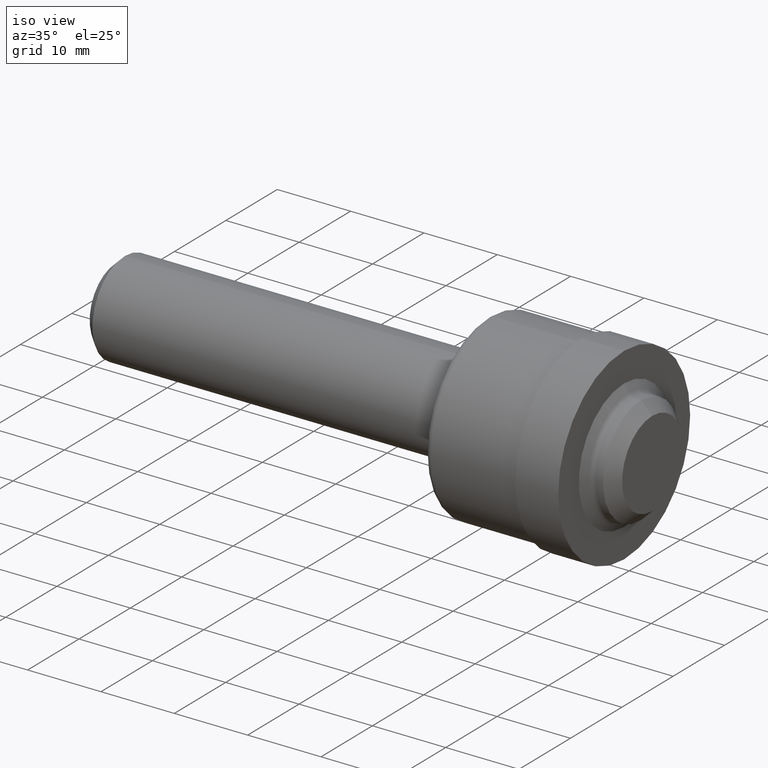
[diagram: clean part render]
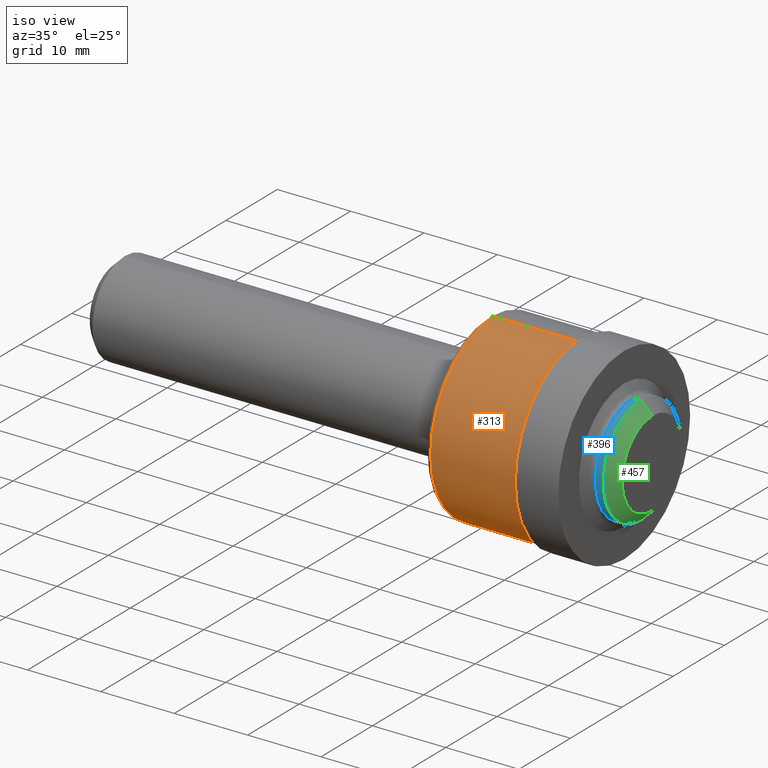
[diagram: same view with three faces highlighted in distinct colors, each labeled with its STEP entity id]
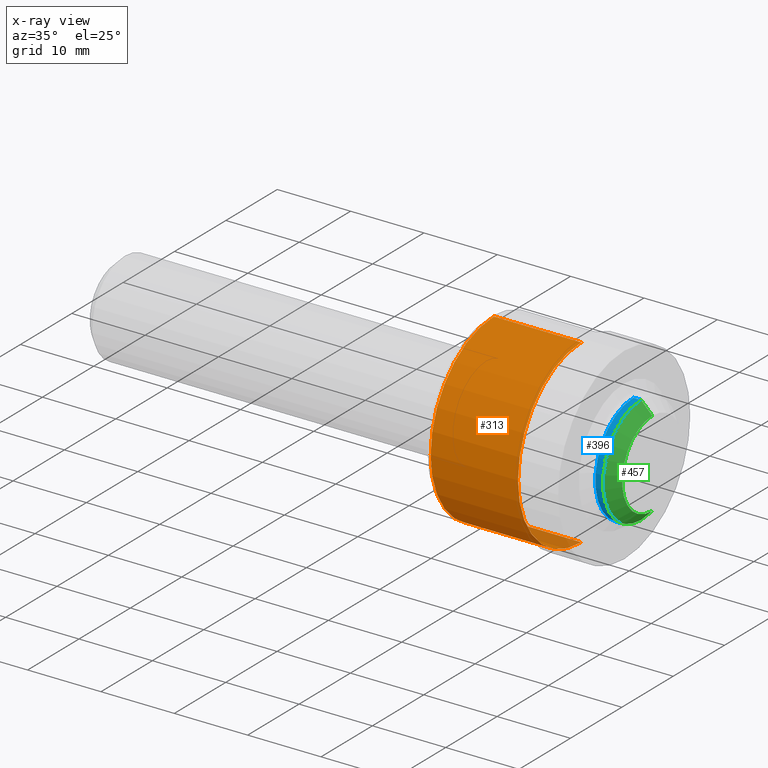
[diagram: x-ray of the same camera — body ghosted, the three highlighted faces saturated]
A machine part, iso view with three faces highlighted in distinct colors.
The next image is the same camera in x-ray (body ghosted, the three faces saturated) — at least one of them is partly hidden behind the body in this view.
Their STEP definitions:

[orange] entity #313 — the highlighted cylindrical surface (partial cylindrical patch) has radius 12.319 mm, axis along (-1, -0, -0).
#20 = AXIS2_PLACEMENT_3D ( 'NONE', #542, #640, #153 ) ;
#80 = ORIENTED_EDGE ( 'NONE', *, *, #309, .T. ) ;
#85 = FACE_OUTER_BOUND ( 'NONE', #172, .T. ) ;
#112 = CARTESIAN_POINT ( 'NONE',  ( 0.000000000000000000, 5.939536975864663462E-17, -0.4850000000000000422 ) ) ;
#153 = DIRECTION ( 'NONE',  ( 0.000000000000000000, 0.000000000000000000, 1.000000000000000000 ) ) ;
#172 = EDGE_LOOP ( 'NONE', ( #361, #512, #80, #349 ) ) ;
#203 = EDGE_CURVE ( 'NONE', #509, #563, #372, .T. ) ;
#230 = VECTOR ( 'NONE', #487, 39.37007874015748143 ) ;
#309 = EDGE_CURVE ( 'NONE', #563, #311, #360, .T. ) ;
#311 = VERTEX_POINT ( 'NONE', #630 ) ;
#313 = ADVANCED_FACE ( 'NONE', ( #85 ), #350, .T. ) ;
#316 = AXIS2_PLACEMENT_3D ( 'NONE', #387, #393, #602 ) ;
#349 = ORIENTED_EDGE ( 'NONE', *, *, #475, .F. ) ;
#350 = CYLINDRICAL_SURFACE ( 'NONE', #425, 0.4850000000000000422 ) ;
#355 = DIRECTION ( 'NONE',  ( 0.000000000000000000, 0.000000000000000000, 1.000000000000000000 ) ) ;
#360 = LINE ( 'NONE', #621, #468 ) ;
#361 = ORIENTED_EDGE ( 'NONE', *, *, #490, .F. ) ;
#372 = CIRCLE ( 'NONE', #316, 0.4850000000000000422 ) ;
#387 = CARTESIAN_POINT ( 'NONE',  ( 2.498999999999999666, 0.000000000000000000, 0.000000000000000000 ) ) ;
#393 = DIRECTION ( 'NONE',  ( -1.000000000000000000, -0.000000000000000000, -0.000000000000000000 ) ) ;
#425 = AXIS2_PLACEMENT_3D ( 'NONE', #666, #471, #355 ) ;
#438 = CARTESIAN_POINT ( 'NONE',  ( 2.029999999999999805, 5.939536975864663462E-17, -0.4850000000000000422 ) ) ;
#462 = DIRECTION ( 'NONE',  ( -1.000000000000000000, -0.000000000000000000, -0.000000000000000000 ) ) ;
#468 = VECTOR ( 'NONE', #462, 39.37007874015748143 ) ;
#471 = DIRECTION ( 'NONE',  ( -1.000000000000000000, -0.000000000000000000, -0.000000000000000000 ) ) ;
#475 = EDGE_CURVE ( 'NONE', #592, #311, #690, .T. ) ;
#487 = DIRECTION ( 'NONE',  ( -1.000000000000000000, -0.000000000000000000, -0.000000000000000000 ) ) ;
#490 = EDGE_CURVE ( 'NONE', #509, #592, #535, .T. ) ;
#491 = CARTESIAN_POINT ( 'NONE',  ( 2.498999999999999666, 0.000000000000000000, 0.4850000000000000422 ) ) ;
#509 = VERTEX_POINT ( 'NONE', #588 ) ;
#512 = ORIENTED_EDGE ( 'NONE', *, *, #203, .T. ) ;
#535 = LINE ( 'NONE', #112, #230 ) ;
#542 = CARTESIAN_POINT ( 'NONE',  ( 2.029999999999999805, 0.000000000000000000, 0.000000000000000000 ) ) ;
#563 = VERTEX_POINT ( 'NONE', #491 ) ;
#588 = CARTESIAN_POINT ( 'NONE',  ( 2.498999999999999666, 5.939536975864663462E-17, -0.4850000000000000422 ) ) ;
#592 = VERTEX_POINT ( 'NONE', #438 ) ;
#602 = DIRECTION ( 'NONE',  ( 0.000000000000000000, 0.000000000000000000, 1.000000000000000000 ) ) ;
#621 = CARTESIAN_POINT ( 'NONE',  ( 0.000000000000000000, 0.000000000000000000, 0.4850000000000000422 ) ) ;
#630 = CARTESIAN_POINT ( 'NONE',  ( 2.029999999999999805, 0.000000000000000000, 0.4850000000000000422 ) ) ;
#640 = DIRECTION ( 'NONE',  ( -1.000000000000000000, -0.000000000000000000, -0.000000000000000000 ) ) ;
#666 = CARTESIAN_POINT ( 'NONE',  ( 0.000000000000000000, 0.000000000000000000, 0.000000000000000000 ) ) ;
#690 = CIRCLE ( 'NONE', #20, 0.4850000000000000422 ) ;

[blue] entity #396 — the highlighted cylindrical surface (partial cylindrical patch) has radius 7.3939 mm, axis along (-1, -0, -0).
#11 = CARTESIAN_POINT ( 'NONE',  ( 2.778594388123388104, 3.564946832317952946E-17, -0.2911000000000006360 ) ) ;
#17 = ORIENTED_EDGE ( 'NONE', *, *, #224, .F. ) ;
#22 = VERTEX_POINT ( 'NONE', #11 ) ;
#27 = CARTESIAN_POINT ( 'NONE',  ( 2.819999999999999840, 0.000000000000000000, 0.000000000000000000 ) ) ;
#116 = DIRECTION ( 'NONE',  ( 0.000000000000000000, 0.000000000000000000, 1.000000000000000000 ) ) ;
#123 = LINE ( 'NONE', #614, #504 ) ;
#126 = LINE ( 'NONE', #331, #356 ) ;
#130 = CIRCLE ( 'NONE', #626, 0.2911000000000000254 ) ;
#141 = DIRECTION ( 'NONE',  ( 0.000000000000000000, 0.000000000000000000, 1.000000000000000000 ) ) ;
#158 = VERTEX_POINT ( 'NONE', #439 ) ;
#162 = AXIS2_PLACEMENT_3D ( 'NONE', #301, #669, #518 ) ;
#171 = CARTESIAN_POINT ( 'NONE',  ( 2.778594388123388104, 0.000000000000000000, 0.000000000000000000 ) ) ;
#189 = VERTEX_POINT ( 'NONE', #345 ) ;
#197 = VERTEX_POINT ( 'NONE', #516 ) ;
#224 = EDGE_CURVE ( 'NONE', #22, #158, #672, .T. ) ;
#298 = CYLINDRICAL_SURFACE ( 'NONE', #162, 0.2911000000000003585 ) ;
#301 = CARTESIAN_POINT ( 'NONE',  ( 0.000000000000000000, 0.000000000000000000, 0.000000000000000000 ) ) ;
#331 = CARTESIAN_POINT ( 'NONE',  ( 0.000000000000000000, 0.000000000000000000, 0.2911000000000003585 ) ) ;
#345 = CARTESIAN_POINT ( 'NONE',  ( 2.819999999999999840, 3.564946832317945551E-17, -0.2911000000000000254 ) ) ;
#356 = VECTOR ( 'NONE', #386, 39.37007874015748143 ) ;
#366 = FACE_OUTER_BOUND ( 'NONE', #519, .T. ) ;
#386 = DIRECTION ( 'NONE',  ( -1.000000000000000000, -0.000000000000000000, -0.000000000000000000 ) ) ;
#396 = ADVANCED_FACE ( 'NONE', ( #366 ), #298, .T. ) ;
#415 = EDGE_CURVE ( 'NONE', #189, #197, #130, .T. ) ;
#439 = CARTESIAN_POINT ( 'NONE',  ( 2.778594388123388104, 0.000000000000000000, 0.2911000000000006360 ) ) ;
#504 = VECTOR ( 'NONE', #505, 39.37007874015748143 ) ;
#505 = DIRECTION ( 'NONE',  ( -1.000000000000000000, -0.000000000000000000, -0.000000000000000000 ) ) ;
#514 = AXIS2_PLACEMENT_3D ( 'NONE', #171, #553, #116 ) ;
#516 = CARTESIAN_POINT ( 'NONE',  ( 2.819999999999999840, 0.000000000000000000, 0.2911000000000000254 ) ) ;
#518 = DIRECTION ( 'NONE',  ( 0.000000000000000000, 0.000000000000000000, 1.000000000000000000 ) ) ;
#519 = EDGE_LOOP ( 'NONE', ( #603, #631, #686, #17 ) ) ;
#523 = DIRECTION ( 'NONE',  ( -1.000000000000000000, -0.000000000000000000, -0.000000000000000000 ) ) ;
#553 = DIRECTION ( 'NONE',  ( -1.000000000000000000, -0.000000000000000000, -0.000000000000000000 ) ) ;
#603 = ORIENTED_EDGE ( 'NONE', *, *, #604, .F. ) ;
#604 = EDGE_CURVE ( 'NONE', #189, #22, #123, .T. ) ;
#614 = CARTESIAN_POINT ( 'NONE',  ( 0.000000000000000000, 3.564946832317949248E-17, -0.2911000000000003585 ) ) ;
#623 = EDGE_CURVE ( 'NONE', #197, #158, #126, .T. ) ;
#626 = AXIS2_PLACEMENT_3D ( 'NONE', #27, #523, #141 ) ;
#631 = ORIENTED_EDGE ( 'NONE', *, *, #415, .T. ) ;
#669 = DIRECTION ( 'NONE',  ( -1.000000000000000000, -0.000000000000000000, -0.000000000000000000 ) ) ;
#672 = CIRCLE ( 'NONE', #514, 0.2911000000000006360 ) ;
#686 = ORIENTED_EDGE ( 'NONE', *, *, #623, .T. ) ;

[green] entity #457 — the highlighted conical surface has half-angle 45 deg.
#1 = FACE_OUTER_BOUND ( 'NONE', #554, .T. ) ;
#15 = DIRECTION ( 'NONE',  ( 0.000000000000000000, 0.000000000000000000, 1.000000000000000000 ) ) ;
#27 = CARTESIAN_POINT ( 'NONE',  ( 2.819999999999999840, 0.000000000000000000, 0.000000000000000000 ) ) ;
#31 = EDGE_CURVE ( 'NONE', #228, #189, #103, .T. ) ;
#53 = DIRECTION ( 'NONE',  ( 0.000000000000000000, 0.000000000000000000, 1.000000000000000000 ) ) ;
#65 = DIRECTION ( 'NONE',  ( -1.000000000000000000, -0.000000000000000000, -0.000000000000000000 ) ) ;
#103 = LINE ( 'NONE', #265, #312 ) ;
#106 = CIRCLE ( 'NONE', #214, 0.2311000000000000276 ) ;
#130 = CIRCLE ( 'NONE', #626, 0.2911000000000000254 ) ;
#141 = DIRECTION ( 'NONE',  ( 0.000000000000000000, 0.000000000000000000, 1.000000000000000000 ) ) ;
#159 = DIRECTION ( 'NONE',  ( -0.7071067811865469066, 0.000000000000000000, 0.7071067811865481278 ) ) ;
#189 = VERTEX_POINT ( 'NONE', #345 ) ;
#197 = VERTEX_POINT ( 'NONE', #516 ) ;
#200 = VERTEX_POINT ( 'NONE', #651 ) ;
#214 = AXIS2_PLACEMENT_3D ( 'NONE', #221, #65, #15 ) ;
#221 = CARTESIAN_POINT ( 'NONE',  ( 2.879999999999999893, 0.000000000000000000, 0.000000000000000000 ) ) ;
#228 = VERTEX_POINT ( 'NONE', #446 ) ;
#265 = CARTESIAN_POINT ( 'NONE',  ( 2.879999999999999893, 2.830158752829533405E-17, -0.2311000000000000276 ) ) ;
#268 = VECTOR ( 'NONE', #159, 39.37007874015748143 ) ;
#291 = ORIENTED_EDGE ( 'NONE', *, *, #483, .T. ) ;
#312 = VECTOR ( 'NONE', #376, 39.37007874015748143 ) ;
#345 = CARTESIAN_POINT ( 'NONE',  ( 2.819999999999999840, 3.564946832317945551E-17, -0.2911000000000000254 ) ) ;
#370 = LINE ( 'NONE', #687, #268 ) ;
#376 = DIRECTION ( 'NONE',  ( -0.7071067811865469066, 8.659560562354940254E-17, -0.7071067811865481278 ) ) ;
#415 = EDGE_CURVE ( 'NONE', #189, #197, #130, .T. ) ;
#446 = CARTESIAN_POINT ( 'NONE',  ( 2.879999999999999893, 3.197552792573739786E-17, -0.2311000000000000276 ) ) ;
#456 = ORIENTED_EDGE ( 'NONE', *, *, #415, .F. ) ;
#457 = ADVANCED_FACE ( 'NONE', ( #1 ), #540, .T. ) ;
#461 = ORIENTED_EDGE ( 'NONE', *, *, #671, .T. ) ;
#478 = DIRECTION ( 'NONE',  ( -1.000000000000000000, -0.000000000000000000, -0.000000000000000000 ) ) ;
#483 = EDGE_CURVE ( 'NONE', #200, #197, #370, .T. ) ;
#508 = AXIS2_PLACEMENT_3D ( 'NONE', #600, #478, #53 ) ;
#516 = CARTESIAN_POINT ( 'NONE',  ( 2.819999999999999840, 0.000000000000000000, 0.2911000000000000254 ) ) ;
#523 = DIRECTION ( 'NONE',  ( -1.000000000000000000, -0.000000000000000000, -0.000000000000000000 ) ) ;
#540 = CONICAL_SURFACE ( 'NONE', #508, 0.2311000000000000276, 0.7853981633974491672 ) ;
#554 = EDGE_LOOP ( 'NONE', ( #667, #461, #291, #456 ) ) ;
#600 = CARTESIAN_POINT ( 'NONE',  ( 2.879999999999999893, 0.000000000000000000, 0.000000000000000000 ) ) ;
#626 = AXIS2_PLACEMENT_3D ( 'NONE', #27, #523, #141 ) ;
#651 = CARTESIAN_POINT ( 'NONE',  ( 2.879999999999999893, 0.000000000000000000, 0.2311000000000000276 ) ) ;
#667 = ORIENTED_EDGE ( 'NONE', *, *, #31, .F. ) ;
#671 = EDGE_CURVE ( 'NONE', #228, #200, #106, .T. ) ;
#687 = CARTESIAN_POINT ( 'NONE',  ( 2.879999999999999893, 0.000000000000000000, 0.2311000000000000276 ) ) ;